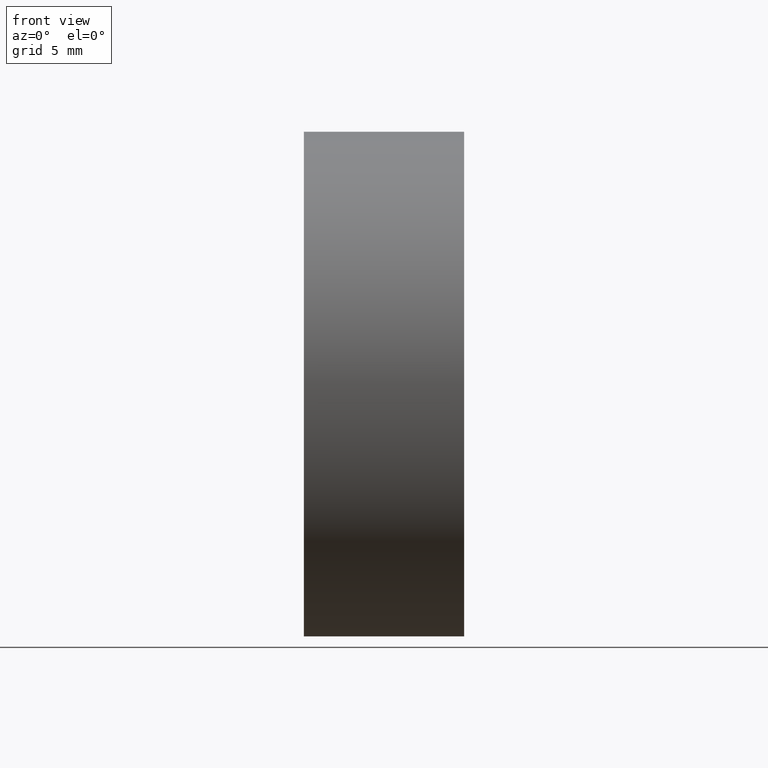
[diagram: clean part render]
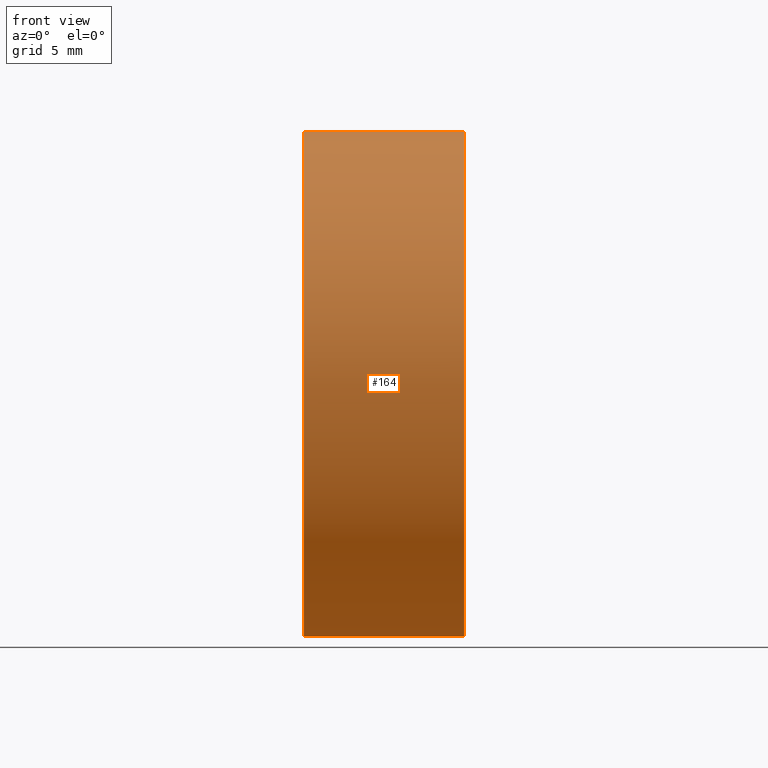
[diagram: same view with one face highlighted and labeled with its STEP entity id]
A machine part, front view. The second image highlights one B-rep face of the part: STEP entity #164.
In plain terms, the highlighted cylindrical surface (partial cylindrical patch) has radius 20 mm, axis along (-1, -0, -0).
Its self-contained STEP definition (entity closure, byte-faithful):
#1 = CYLINDRICAL_SURFACE ( 'NONE', #89, 20.00000000000000400 ) ;
#2 = LINE ( 'NONE', #26, #125 ) ;
#5 = ORIENTED_EDGE ( 'NONE', *, *, #176, .F. ) ;
#9 = AXIS2_PLACEMENT_3D ( 'NONE', #86, #30, #120 ) ;
#13 = DIRECTION ( 'NONE',  ( -1.000000000000000000, -0.0000000000000000000, -0.0000000000000000000 ) ) ;
#16 = ORIENTED_EDGE ( 'NONE', *, *, #79, .F. ) ;
#22 = ORIENTED_EDGE ( 'NONE', *, *, #232, .T. ) ;
#24 = CIRCLE ( 'NONE', #122, 20.00000000000000400 ) ;
#25 = EDGE_LOOP ( 'NONE', ( #16, #22, #99, #155, #5, #114 ) ) ;
#26 = CARTESIAN_POINT ( 'NONE',  ( 106.1246527853420500, 65.22260287298739500, -20.00000000000000400 ) ) ;
#29 = CARTESIAN_POINT ( 'NONE',  ( 113.7373559817687900, 65.22260287298739500, 0.0000000000000000000 ) ) ;
#30 = DIRECTION ( 'NONE',  ( -1.000000000000000000, -0.0000000000000000000, -0.0000000000000000000 ) ) ;
#36 = AXIS2_PLACEMENT_3D ( 'NONE', #29, #225, #228 ) ;
#42 = DIRECTION ( 'NONE',  ( 0.0000000000000000000, 0.0000000000000000000, 1.000000000000000000 ) ) ;
#47 = VERTEX_POINT ( 'NONE', #178 ) ;
#55 = VERTEX_POINT ( 'NONE', #78 ) ;
#60 = DIRECTION ( 'NONE',  ( -1.000000000000000000, -0.0000000000000000000, -0.0000000000000000000 ) ) ;
#62 = VECTOR ( 'NONE', #60, 1000.000000000000000 ) ;
#78 = CARTESIAN_POINT ( 'NONE',  ( 126.4445069857047500, 65.22260287298739500, -20.00000000000000400 ) ) ;
#79 = EDGE_CURVE ( 'NONE', #55, #112, #2, .T. ) ;
#81 = CARTESIAN_POINT ( 'NONE',  ( 113.7373559817687900, 45.22260287298739500, -2.449293598294707300E-015 ) ) ;
#84 = VERTEX_POINT ( 'NONE', #81 ) ;
#86 = CARTESIAN_POINT ( 'NONE',  ( 126.4445069857047500, 65.22260287298739500, 0.0000000000000000000 ) ) ;
#88 = DIRECTION ( 'NONE',  ( 0.0000000000000000000, 0.0000000000000000000, 1.000000000000000000 ) ) ;
#89 = AXIS2_PLACEMENT_3D ( 'NONE', #194, #13, #88 ) ;
#99 = ORIENTED_EDGE ( 'NONE', *, *, #108, .T. ) ;
#102 = EDGE_CURVE ( 'NONE', #105, #192, #198, .T. ) ;
#105 = VERTEX_POINT ( 'NONE', #186 ) ;
#108 = EDGE_CURVE ( 'NONE', #47, #105, #24, .T. ) ;
#112 = VERTEX_POINT ( 'NONE', #148 ) ;
#114 = ORIENTED_EDGE ( 'NONE', *, *, #223, .F. ) ;
#120 = DIRECTION ( 'NONE',  ( 0.0000000000000000000, 0.0000000000000000000, 1.000000000000000000 ) ) ;
#121 = FACE_OUTER_BOUND ( 'NONE', #25, .T. ) ;
#122 = AXIS2_PLACEMENT_3D ( 'NONE', #230, #212, #42 ) ;
#125 = VECTOR ( 'NONE', #160, 1000.000000000000000 ) ;
#131 = AXIS2_PLACEMENT_3D ( 'NONE', #152, #170, #149 ) ;
#135 = CIRCLE ( 'NONE', #36, 20.00000000000000400 ) ;
#148 = CARTESIAN_POINT ( 'NONE',  ( 113.7373559817687900, 65.22260287298739500, -20.00000000000000400 ) ) ;
#149 = DIRECTION ( 'NONE',  ( 0.0000000000000000000, 0.0000000000000000000, 1.000000000000000000 ) ) ;
#152 = CARTESIAN_POINT ( 'NONE',  ( 113.7373559817687900, 65.22260287298739500, 0.0000000000000000000 ) ) ;
#155 = ORIENTED_EDGE ( 'NONE', *, *, #102, .T. ) ;
#160 = DIRECTION ( 'NONE',  ( -1.000000000000000000, -0.0000000000000000000, -0.0000000000000000000 ) ) ;
#164 = ADVANCED_FACE ( 'NONE', ( #121 ), #1, .T. ) ;
#170 = DIRECTION ( 'NONE',  ( -1.000000000000000000, -0.0000000000000000000, -0.0000000000000000000 ) ) ;
#176 = EDGE_CURVE ( 'NONE', #84, #192, #211, .T. ) ;
#178 = CARTESIAN_POINT ( 'NONE',  ( 126.4445069857047500, 45.22260287298739500, 0.0000000000000000000 ) ) ;
#186 = CARTESIAN_POINT ( 'NONE',  ( 126.4445069857047500, 65.22260287298739500, 20.00000000000000400 ) ) ;
#192 = VERTEX_POINT ( 'NONE', #210 ) ;
#194 = CARTESIAN_POINT ( 'NONE',  ( 106.1246527853420500, 65.22260287298739500, 0.0000000000000000000 ) ) ;
#198 = LINE ( 'NONE', #200, #62 ) ;
#200 = CARTESIAN_POINT ( 'NONE',  ( 106.1246527853420500, 65.22260287298739500, 20.00000000000000400 ) ) ;
#210 = CARTESIAN_POINT ( 'NONE',  ( 113.7373559817687900, 65.22260287298739500, 20.00000000000000400 ) ) ;
#211 = CIRCLE ( 'NONE', #131, 20.00000000000000400 ) ;
#212 = DIRECTION ( 'NONE',  ( -1.000000000000000000, -0.0000000000000000000, -0.0000000000000000000 ) ) ;
#218 = CIRCLE ( 'NONE', #9, 20.00000000000000400 ) ;
#223 = EDGE_CURVE ( 'NONE', #112, #84, #135, .T. ) ;
#225 = DIRECTION ( 'NONE',  ( -1.000000000000000000, -0.0000000000000000000, -0.0000000000000000000 ) ) ;
#228 = DIRECTION ( 'NONE',  ( 0.0000000000000000000, 0.0000000000000000000, 1.000000000000000000 ) ) ;
#230 = CARTESIAN_POINT ( 'NONE',  ( 126.4445069857047500, 65.22260287298739500, 0.0000000000000000000 ) ) ;
#232 = EDGE_CURVE ( 'NONE', #55, #47, #218, .T. ) ;